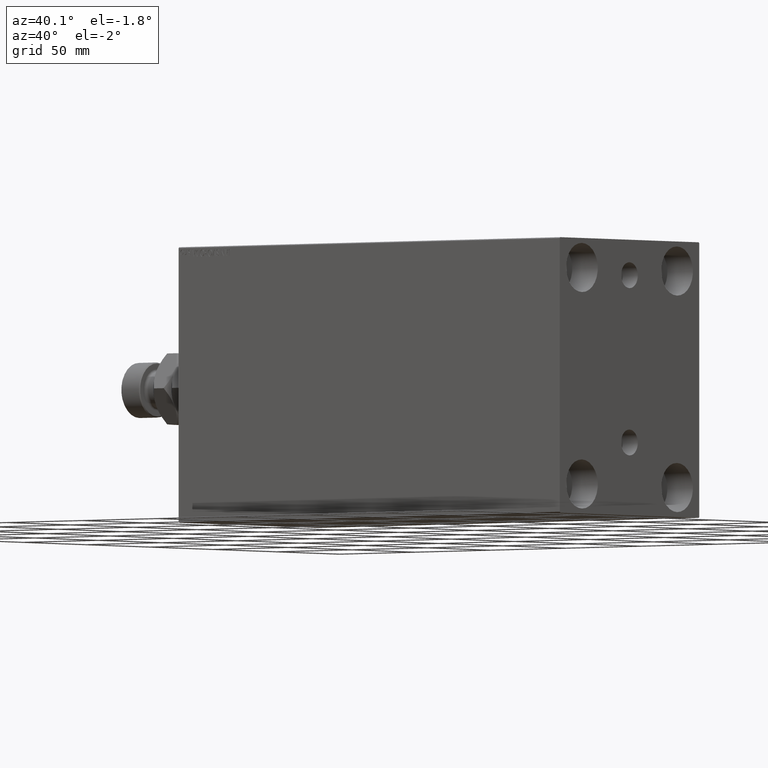
[diagram: clean part render]
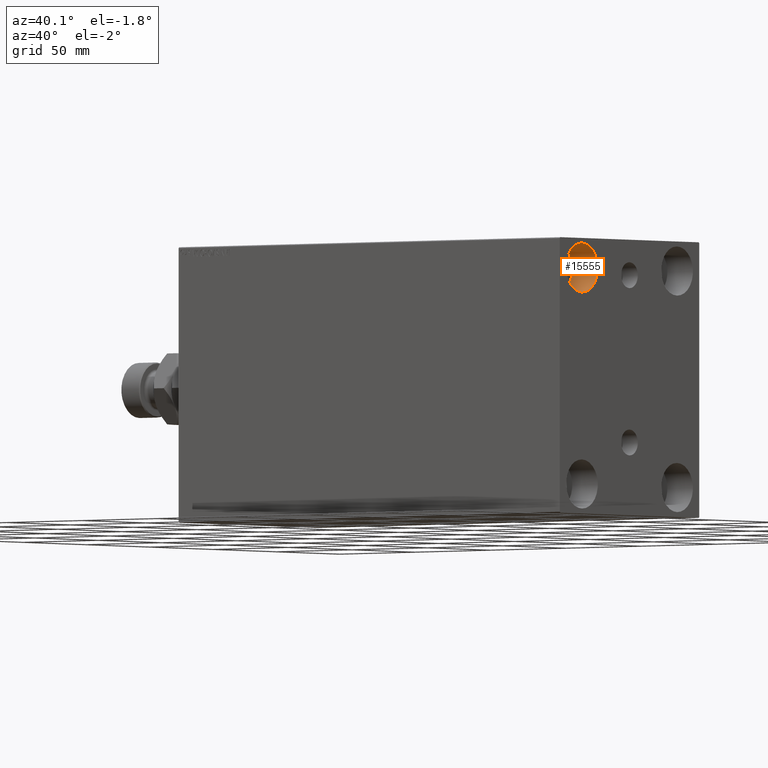
[diagram: same view with one face highlighted and labeled with its STEP entity id]
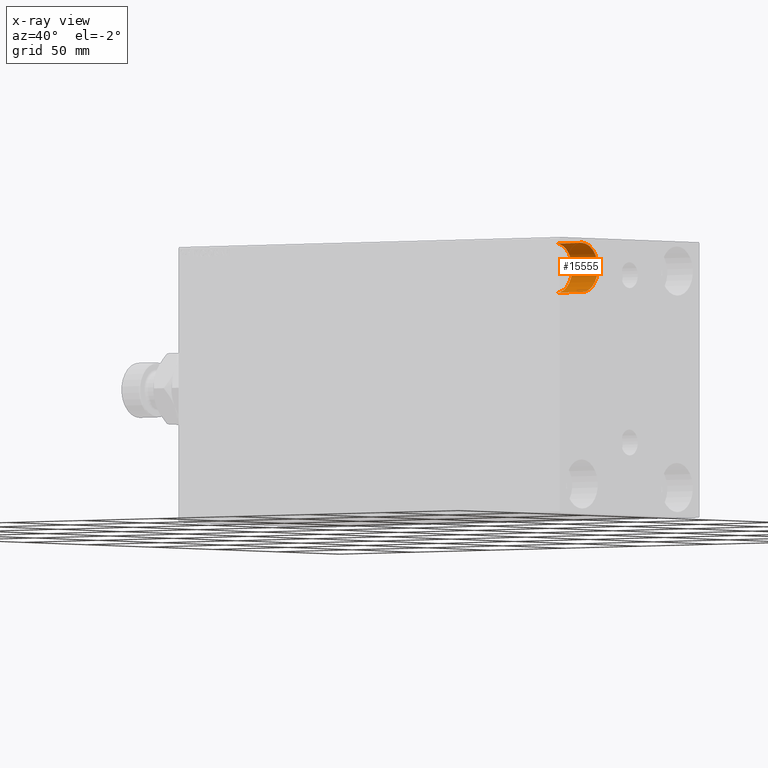
[diagram: x-ray of the same camera — body ghosted, the highlighted face saturated]
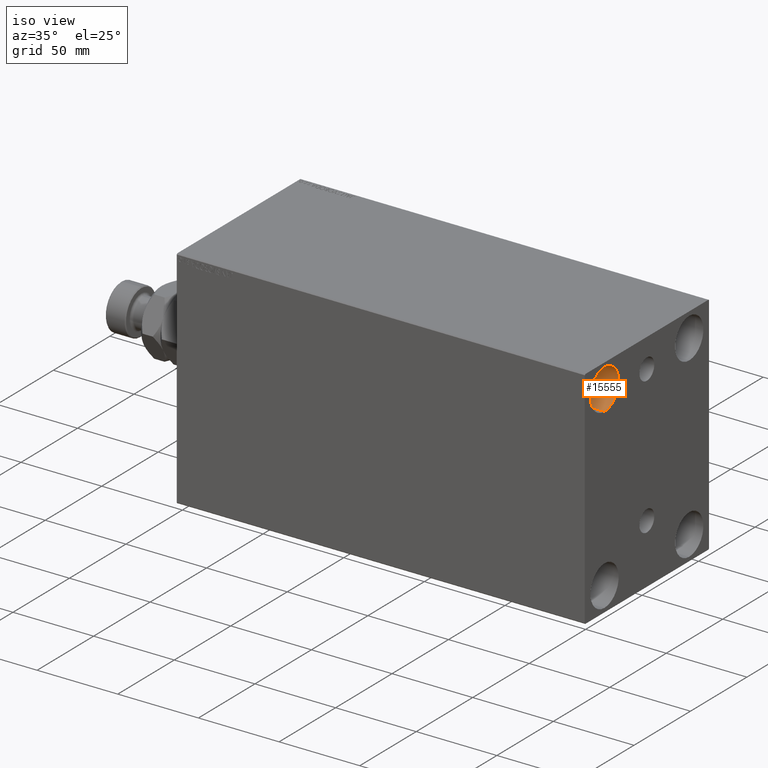
[diagram: same view with one face highlighted and labeled with its STEP entity id]
A machine part, auxiliary view. The second image highlights one B-rep face of the part: STEP entity #15555.
The next image is the same camera in x-ray: the body ghosted, the highlighted face saturated — about 0% of this face is hidden behind the body in this view.
A second angle (iso view) of the same face is appended — the face is thin or edge-on in the first view.
In plain terms, the highlighted cylindrical surface (edge-blend (fillet) strip) has radius 12.5 mm, axis along (1, 0, 0).
Its self-contained STEP definition (entity closure, byte-faithful):
#2357 = DIRECTION ( 'NONE',  ( 0.000000000000000000, 0.000000000000000000, -1.000000000000000000 ) ) ;
#5439 = DIRECTION ( 'NONE',  ( 0.000000000000000000, 0.000000000000000000, 1.000000000000000000 ) ) ;
#5761 = CIRCLE ( 'NONE', #7965, 12.49999999999999645 ) ;
#6117 = EDGE_CURVE ( 'NONE', #27008, #9196, #37965, .T. ) ;
#6652 = DIRECTION ( 'NONE',  ( 1.000000000000000000, -0.000000000000000000, -0.000000000000000000 ) ) ;
#7005 = VERTEX_POINT ( 'NONE', #7552 ) ;
#7552 = CARTESIAN_POINT ( 'NONE',  ( 253.0000000000000000, -37.50000000000000711, 67.50000000000000000 ) ) ;
#7965 = AXIS2_PLACEMENT_3D ( 'NONE', #26195, #9339, #5439 ) ;
#9196 = VERTEX_POINT ( 'NONE', #10287 ) ;
#9339 = DIRECTION ( 'NONE',  ( -1.000000000000000000, -0.000000000000000000, -0.000000000000000000 ) ) ;
#10287 = CARTESIAN_POINT ( 'NONE',  ( 253.0000000000000000, -37.50000000000000711, 42.50000000000000711 ) ) ;
#11788 = ORIENTED_EDGE ( 'NONE', *, *, #34448, .T. ) ;
#12511 = CYLINDRICAL_SURFACE ( 'NONE', #17867, 12.49999999999999645 ) ;
#13454 = EDGE_CURVE ( 'NONE', #40998, #7005, #22559, .T. ) ;
#15555 = ADVANCED_FACE ( 'NONE', ( #22882 ), #12511, .F. ) ;
#17867 = AXIS2_PLACEMENT_3D ( 'NONE', #37134, #33676, #2357 ) ;
#18225 = CARTESIAN_POINT ( 'NONE',  ( 253.0000000000000000, -37.50000000000000711, 55.00000000000000711 ) ) ;
#18252 = ORIENTED_EDGE ( 'NONE', *, *, #13454, .F. ) ;
#18680 = DIRECTION ( 'NONE',  ( 0.000000000000000000, 0.000000000000000000, 1.000000000000000000 ) ) ;
#19492 = EDGE_LOOP ( 'NONE', ( #18252, #11788, #25454, #44575 ) ) ;
#22559 = LINE ( 'NONE', #23016, #33762 ) ;
#22592 = DIRECTION ( 'NONE',  ( -1.000000000000000000, -0.000000000000000000, -0.000000000000000000 ) ) ;
#22882 = FACE_OUTER_BOUND ( 'NONE', #19492, .T. ) ;
#23016 = CARTESIAN_POINT ( 'NONE',  ( 236.0000000000000000, -37.50000000000000711, 67.50000000000000000 ) ) ;
#25246 = CARTESIAN_POINT ( 'NONE',  ( 236.0000000000000000, -37.50000000000000711, 42.50000000000000711 ) ) ;
#25454 = ORIENTED_EDGE ( 'NONE', *, *, #6117, .T. ) ;
#26195 = CARTESIAN_POINT ( 'NONE',  ( 236.0000000000000000, -37.50000000000000711, 55.00000000000000711 ) ) ;
#27008 = VERTEX_POINT ( 'NONE', #25246 ) ;
#27228 = AXIS2_PLACEMENT_3D ( 'NONE', #18225, #22592, #18680 ) ;
#27952 = CIRCLE ( 'NONE', #27228, 12.49999999999999645 ) ;
#33676 = DIRECTION ( 'NONE',  ( 1.000000000000000000, -0.000000000000000000, -0.000000000000000000 ) ) ;
#33762 = VECTOR ( 'NONE', #34026, 1000.000000000000000 ) ;
#34026 = DIRECTION ( 'NONE',  ( 1.000000000000000000, -0.000000000000000000, -0.000000000000000000 ) ) ;
#34448 = EDGE_CURVE ( 'NONE', #40998, #27008, #5761, .T. ) ;
#37134 = CARTESIAN_POINT ( 'NONE',  ( 236.0000000000000000, -37.50000000000000711, 55.00000000000000711 ) ) ;
#37965 = LINE ( 'NONE', #45091, #41660 ) ;
#38333 = CARTESIAN_POINT ( 'NONE',  ( 236.0000000000000000, -37.50000000000000711, 67.50000000000000000 ) ) ;
#39453 = EDGE_CURVE ( 'NONE', #7005, #9196, #27952, .T. ) ;
#40998 = VERTEX_POINT ( 'NONE', #38333 ) ;
#41660 = VECTOR ( 'NONE', #6652, 1000.000000000000000 ) ;
#44575 = ORIENTED_EDGE ( 'NONE', *, *, #39453, .F. ) ;
#45091 = CARTESIAN_POINT ( 'NONE',  ( 236.0000000000000000, -37.50000000000000711, 42.50000000000000711 ) ) ;